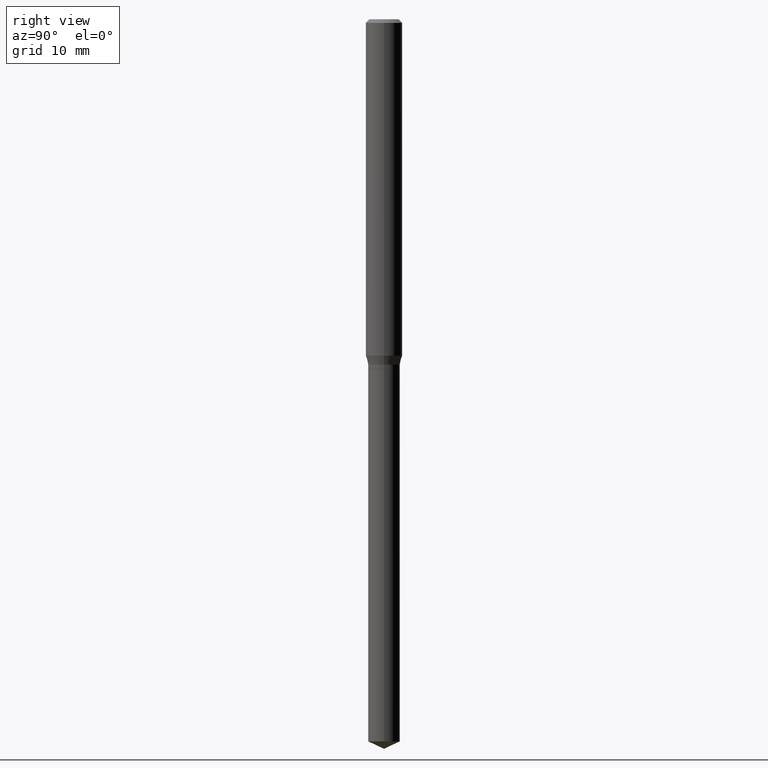
[diagram: clean part render]
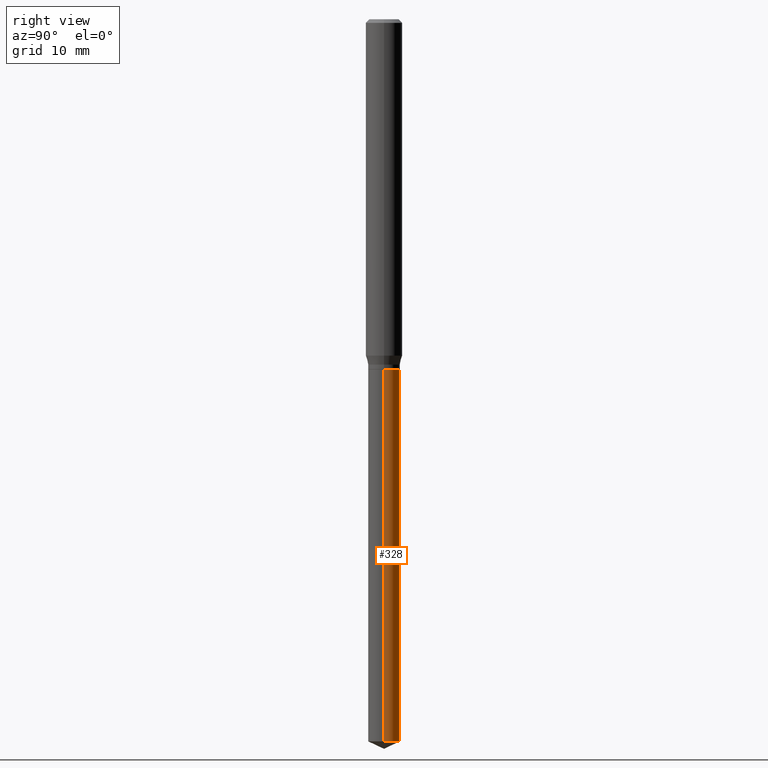
[diagram: same view with one face highlighted and labeled with its STEP entity id]
A machine part, right view. The second image highlights one B-rep face of the part: STEP entity #328.
In plain terms, the highlighted cylindrical surface (edge-blend (fillet) strip) has radius 1.3005 mm, axis along (-0, 0, 1).
Its self-contained STEP definition (entity closure, byte-faithful):
#19 = CARTESIAN_POINT ( 'NONE',  ( -0.05120000000000002327, -7.800420388191787803E-15, -2.338325047902463982 ) ) ;
#59 = EDGE_LOOP ( 'NONE', ( #263, #304, #73, #311 ) ) ;
#73 = ORIENTED_EDGE ( 'NONE', *, *, #77, .F. ) ;
#77 = EDGE_CURVE ( 'NONE', #356, #485, #353, .T. ) ;
#83 = LINE ( 'NONE', #352, #361 ) ;
#92 = DIRECTION ( 'NONE',  ( 1.000000000000000000, -6.982962677686263555E-15, 0.000000000000000000 ) ) ;
#101 = VERTEX_POINT ( 'NONE', #107 ) ;
#104 = DIRECTION ( 'NONE',  ( 1.000000000000000000, -6.982962677686263555E-15, 0.000000000000000000 ) ) ;
#107 = CARTESIAN_POINT ( 'NONE',  ( 0.05120000000000002327, -8.521745957998495027E-15, -2.338325047902463982 ) ) ;
#120 = LINE ( 'NONE', #278, #395 ) ;
#166 = CYLINDRICAL_SURFACE ( 'NONE', #346, 0.05120000000000000939 ) ;
#204 = EDGE_CURVE ( 'NONE', #101, #356, #83, .T. ) ;
#210 = CARTESIAN_POINT ( 'NONE',  ( 2.772917079333326390E-29, -3.958990690114243565E-15, -1.133900000000000130 ) ) ;
#227 = DIRECTION ( 'NONE',  ( -2.445468806185136597E-29, 3.491481338843145583E-15, 1.000000000000000000 ) ) ;
#228 = CARTESIAN_POINT ( 'NONE',  ( 2.772917079333326950E-29, -3.958990690114243565E-15, -1.133900000000000352 ) ) ;
#245 = FACE_OUTER_BOUND ( 'NONE', #59, .T. ) ;
#263 = ORIENTED_EDGE ( 'NONE', *, *, #384, .T. ) ;
#266 = CARTESIAN_POINT ( 'NONE',  ( -0.05120000000000000939, -5.697806598798429954E-15, -1.133900000000000352 ) ) ;
#273 = DIRECTION ( 'NONE',  ( -2.445468806185136877E-29, 3.491481338843145188E-15, 1.000000000000000000 ) ) ;
#275 = AXIS2_PLACEMENT_3D ( 'NONE', #228, #227, #104 ) ;
#278 = CARTESIAN_POINT ( 'NONE',  ( -0.05120000000000000939, -3.595192809405072105E-15, -1.133900000000000130 ) ) ;
#283 = CARTESIAN_POINT ( 'NONE',  ( 0.05120000000000000939, -4.316518379211780118E-15, -1.133900000000000352 ) ) ;
#302 = EDGE_CURVE ( 'NONE', #374, #485, #120, .T. ) ;
#304 = ORIENTED_EDGE ( 'NONE', *, *, #302, .T. ) ;
#311 = ORIENTED_EDGE ( 'NONE', *, *, #204, .F. ) ;
#320 = DIRECTION ( 'NONE',  ( -2.445468806185136597E-29, 3.491481338843145583E-15, 1.000000000000000000 ) ) ;
#328 = ADVANCED_FACE ( 'NONE', ( #245 ), #166, .T. ) ;
#346 = AXIS2_PLACEMENT_3D ( 'NONE', #210, #370, #399 ) ;
#352 = CARTESIAN_POINT ( 'NONE',  ( 0.05120000000000000939, -4.316518379211780118E-15, -1.133900000000000130 ) ) ;
#353 = CIRCLE ( 'NONE', #275, 0.05120000000000000939 ) ;
#356 = VERTEX_POINT ( 'NONE', #283 ) ;
#361 = VECTOR ( 'NONE', #273, 39.37007874015748143 ) ;
#370 = DIRECTION ( 'NONE',  ( -2.445468806185136597E-29, 3.491481338843145583E-15, 1.000000000000000000 ) ) ;
#374 = VERTEX_POINT ( 'NONE', #19 ) ;
#384 = EDGE_CURVE ( 'NONE', #101, #374, #405, .T. ) ;
#395 = VECTOR ( 'NONE', #431, 39.37007874015748143 ) ;
#399 = DIRECTION ( 'NONE',  ( 1.000000000000000000, -6.982962677686263555E-15, 0.000000000000000000 ) ) ;
#405 = CIRCLE ( 'NONE', #433, 0.05120000000000000939 ) ;
#431 = DIRECTION ( 'NONE',  ( -2.445468806185136877E-29, 3.491481338843145188E-15, 1.000000000000000000 ) ) ;
#433 = AXIS2_PLACEMENT_3D ( 'NONE', #434, #320, #92 ) ;
#434 = CARTESIAN_POINT ( 'NONE',  ( 5.718300963366841396E-29, -8.164218268900958475E-15, -2.338325047902463982 ) ) ;
#485 = VERTEX_POINT ( 'NONE', #266 ) ;